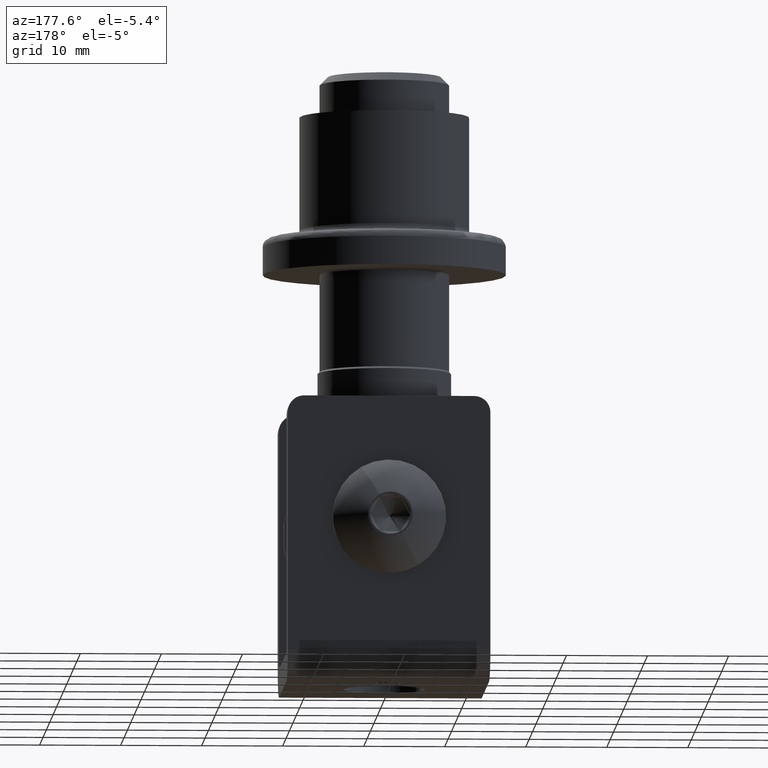
[diagram: clean part render]
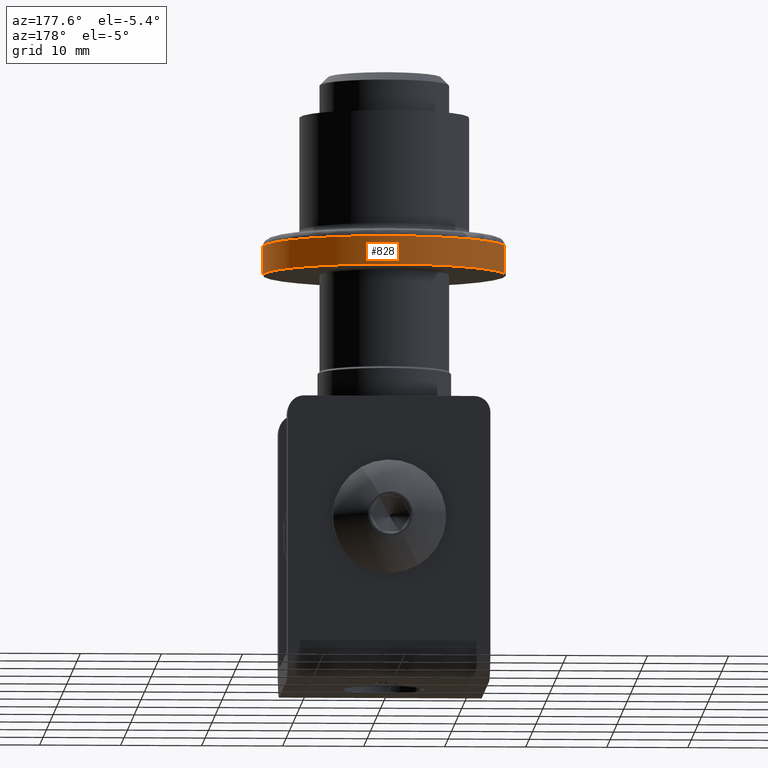
[diagram: same view with one face highlighted and labeled with its STEP entity id]
A machine part, auxiliary view. The second image highlights one B-rep face of the part: STEP entity #828.
In plain terms, the highlighted cylindrical surface (partial cylindrical patch) has radius 15 mm, axis along (0, 0, -1).
Its self-contained STEP definition (entity closure, byte-faithful):
#607 = VECTOR ( 'NONE', #16830, 1000.000000000000000 ) ;
#828 = ADVANCED_FACE ( 'NONE', ( #17158 ), #6210, .T. ) ;
#1201 = DIRECTION ( 'NONE',  ( -0.000000000000000000, -1.000000000000000000, -0.000000000000000000 ) ) ;
#1463 = CARTESIAN_POINT ( 'NONE',  ( 0.000000000000000000, 0.000000000000000000, -15.00000000000000000 ) ) ;
#1473 = CIRCLE ( 'NONE', #3676, 15.00000000000000000 ) ;
#1876 = CIRCLE ( 'NONE', #4328, 15.00000000000000000 ) ;
#2998 = LINE ( 'NONE', #1463, #4465 ) ;
#3620 = AXIS2_PLACEMENT_3D ( 'NONE', #7410, #16922, #7650 ) ;
#3649 = ORIENTED_EDGE ( 'NONE', *, *, #14438, .T. ) ;
#3676 = AXIS2_PLACEMENT_3D ( 'NONE', #10880, #4179, #10756 ) ;
#3960 = DIRECTION ( 'NONE',  ( -0.000000000000000000, -1.000000000000000000, -0.000000000000000000 ) ) ;
#4179 = DIRECTION ( 'NONE',  ( -0.000000000000000000, -1.000000000000000000, -0.000000000000000000 ) ) ;
#4249 = EDGE_CURVE ( 'NONE', #15267, #16865, #2998, .T. ) ;
#4328 = AXIS2_PLACEMENT_3D ( 'NONE', #10724, #3960, #9490 ) ;
#4465 = VECTOR ( 'NONE', #1201, 1000.000000000000000 ) ;
#4686 = ORIENTED_EDGE ( 'NONE', *, *, #6068, .F. ) ;
#6068 = EDGE_CURVE ( 'NONE', #16865, #10849, #1473, .T. ) ;
#6210 = CYLINDRICAL_SURFACE ( 'NONE', #3620, 15.00000000000000000 ) ;
#7410 = CARTESIAN_POINT ( 'NONE',  ( 0.000000000000000000, 0.000000000000000000, 0.000000000000000000 ) ) ;
#7561 = CARTESIAN_POINT ( 'NONE',  ( 1.836970198721029589E-15, 0.000000000000000000, 15.00000000000000000 ) ) ;
#7650 = DIRECTION ( 'NONE',  ( 0.000000000000000000, 0.000000000000000000, -1.000000000000000000 ) ) ;
#8654 = LINE ( 'NONE', #7561, #607 ) ;
#9115 = CARTESIAN_POINT ( 'NONE',  ( 0.000000000000000000, 3.499999999999998668, -15.00000000000000000 ) ) ;
#9120 = CARTESIAN_POINT ( 'NONE',  ( 0.000000000000000000, 0.000000000000000000, -15.00000000000000000 ) ) ;
#9490 = DIRECTION ( 'NONE',  ( 0.000000000000000000, 0.000000000000000000, 1.000000000000000000 ) ) ;
#10724 = CARTESIAN_POINT ( 'NONE',  ( 0.000000000000000000, 3.499999999999998668, 0.000000000000000000 ) ) ;
#10756 = DIRECTION ( 'NONE',  ( 0.000000000000000000, 0.000000000000000000, -1.000000000000000000 ) ) ;
#10849 = VERTEX_POINT ( 'NONE', #11819 ) ;
#10880 = CARTESIAN_POINT ( 'NONE',  ( 0.000000000000000000, 0.000000000000000000, 0.000000000000000000 ) ) ;
#10984 = EDGE_LOOP ( 'NONE', ( #15661, #3649, #4686, #11688 ) ) ;
#11688 = ORIENTED_EDGE ( 'NONE', *, *, #4249, .F. ) ;
#11819 = CARTESIAN_POINT ( 'NONE',  ( 1.836970198721029589E-15, 0.000000000000000000, 15.00000000000000000 ) ) ;
#14395 = CARTESIAN_POINT ( 'NONE',  ( 1.836970198721029589E-15, 3.499999999999998668, 15.00000000000000000 ) ) ;
#14438 = EDGE_CURVE ( 'NONE', #17139, #10849, #8654, .T. ) ;
#14799 = EDGE_CURVE ( 'NONE', #15267, #17139, #1876, .T. ) ;
#15267 = VERTEX_POINT ( 'NONE', #9115 ) ;
#15661 = ORIENTED_EDGE ( 'NONE', *, *, #14799, .T. ) ;
#16830 = DIRECTION ( 'NONE',  ( -0.000000000000000000, -1.000000000000000000, -0.000000000000000000 ) ) ;
#16865 = VERTEX_POINT ( 'NONE', #9120 ) ;
#16922 = DIRECTION ( 'NONE',  ( -0.000000000000000000, -1.000000000000000000, -0.000000000000000000 ) ) ;
#17139 = VERTEX_POINT ( 'NONE', #14395 ) ;
#17158 = FACE_OUTER_BOUND ( 'NONE', #10984, .T. ) ;